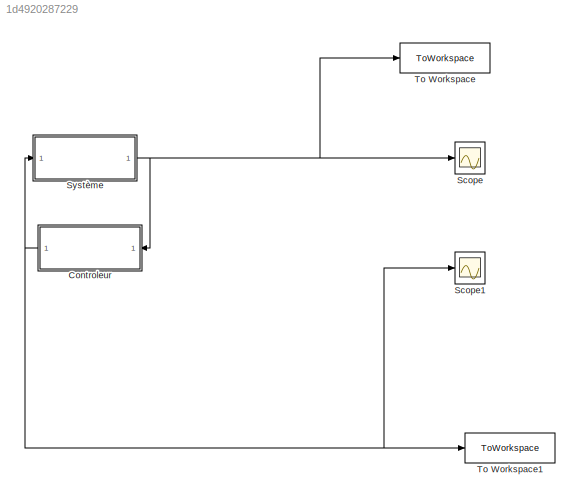
MODEL slx_1d4920287229
KIND model
CONFIG AbsTol = auto
CONFIG EnableMultiTasking = off
CONFIG FixedStep = auto
CONFIG MaxStep = auto
CONFIG MinStep = auto
CONFIG RelTol = 1e-3
CONFIG SampleTimeConstraint = Unconstrained
CONFIG SolverName = VariableStepAuto
CONFIG StartTime = 0.0
CONFIG StopTime = 10.0
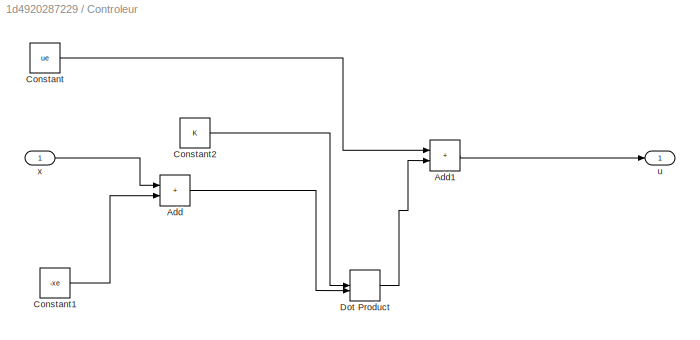
BLOCK [SubSystem] Controleur
  NameLocation = top
  Ports = [1, 1]
  RequestExecContextInheritance = off
BLOCK [Sum] Controleur/Add
  IconShape = rectangular
  Ports = [2, 1]
BLOCK [Sum] Controleur/Add1
  IconShape = rectangular
  Ports = [2, 1]
BLOCK [Constant] Controleur/Constant
  Value = ue
BLOCK [Constant] Controleur/Constant1
  Value = -xe
BLOCK [Constant] Controleur/Constant2
  Value = K
BLOCK [DotProduct] Controleur/Dot Product
  OutDataTypeStr = Inherit: Inherit via internal rule
BLOCK [Outport] Controleur/u
BLOCK [Inport] Controleur/x
BLOCK [Scope] Scope
  Floating = off
  NumInputPorts = 1
  Ports = [1]
  ScopeSpecificationString = Simulink.scopes.TimeScopeBlockCfg('CurrentConfiguration', extmgr.ConfigurationSet(extmgr.Configuration('Core','General UI',true),extmgr.Configuration('Core','Source UI',true),extmgr.Configuration('Sources','WiredSimulink',true),extmgr.Configuration('Visuals','Time Domain',true,'SerializedDisplays',{struct('MinYLimReal','-0.17819','MaxYLimReal','0.19433','YLabelReal','','MinYLimMag','0.00000','MaxY...<+1395ch>
BLOCK [Scope] Scope1
  Floating = off
  NumInputPorts = 1
  Ports = [1]
  ScopeSpecificationString = Simulink.scopes.TimeScopeBlockCfg('CurrentConfiguration', extmgr.ConfigurationSet(extmgr.Configuration('Core','General UI',true),extmgr.Configuration('Core','Source UI',true),extmgr.Configuration('Sources','WiredSimulink',true,'DataLoggingVariableName','ScopeData1'),extmgr.Configuration('Visuals','Time Domain',true,'SerializedDisplays',{struct('MinYLimReal','-2.41085','MaxYLimReal','5.50386','YLab...<+1423ch>
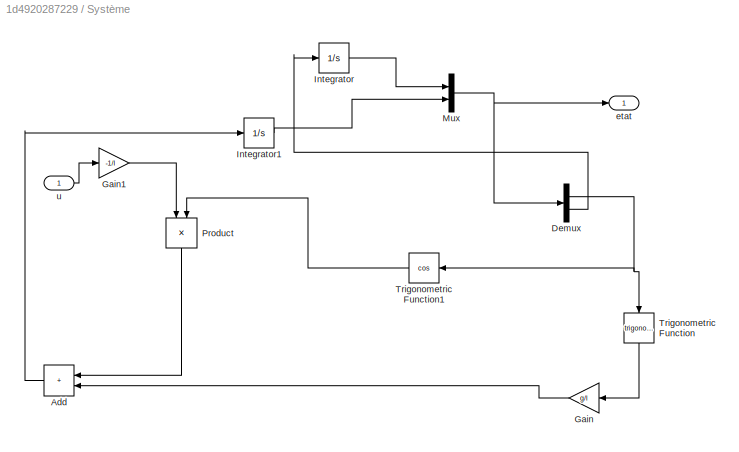
BLOCK [SubSystem] Système
  Ports = [1, 1]
  RequestExecContextInheritance = off
BLOCK [Sum] Système/Add
  IconShape = rectangular
  Ports = [2, 1]
BLOCK [Demux] Système/Demux
  Outputs = 2
  Ports = [1, 2]
BLOCK [Gain] Système/Gain
  Gain = g/l
BLOCK [Gain] Système/Gain1
  Gain = -1/l
BLOCK [Integrator] Système/Integrator
  InitialCondition = x0(1)
  Ports = [1, 1]
BLOCK [Integrator] Système/Integrator1
  InitialCondition = x0(2)
  Ports = [1, 1]
BLOCK [Mux] Système/Mux
  DisplayOption = bar
  Inputs = 2
  Ports = [2, 1]
BLOCK [Product] Système/Product
  NameLocation = left
  Ports = [2, 1]
BLOCK [Trigonometry] Système/Trigonometric Function
  NameLocation = left
  Ports = [1, 1]
BLOCK [Trigonometry] Système/Trigonometric Function1
  Operator = cos
  Ports = [1, 1]
BLOCK [Outport] Système/etat
BLOCK [Inport] Système/u
BLOCK [ToWorkspace] To Workspace
  FixptAsFi = on
  MaxDataPoints = inf
  Ports = [1]
  SampleTime = -1
  SaveFormat = Timeseries
  VariableName = X
BLOCK [ToWorkspace] To Workspace1
  FixptAsFi = on
  MaxDataPoints = inf
  Ports = [1]
  SampleTime = -1
  SaveFormat = Timeseries
  VariableName = U
LINE Controleur/Add1:1 -> Controleur/u:1
LINE Controleur/Add:1 -> Controleur/Dot Product:2
LINE Controleur/Constant1:1 -> Controleur/Add:2
LINE Controleur/Constant2:1 -> Controleur/Dot Product:1
LINE Controleur/Constant:1 -> Controleur/Add1:1
LINE Controleur/Dot Product:1 -> Controleur/Add1:2
LINE Controleur/x:1 -> Controleur/Add:1
NET Controleur:1 -> Scope1:1, Système:1, To Workspace1:1
LINE Système/Add:1 -> Système/Integrator1:1
NET Système/Demux:1 -> Système/Trigonometric Function1:1, Système/Trigonometric Function:1
LINE Système/Demux:2 -> Système/Integrator:1
LINE Système/Gain1:1 -> Système/Product:1
LINE Système/Gain:1 -> Système/Add:2
LINE Système/Integrator1:1 -> Système/Mux:2
LINE Système/Integrator:1 -> Système/Mux:1
NET Système/Mux:1 -> Système/Demux:1, Système/etat:1
LINE Système/Product:1 -> Système/Add:1
LINE Système/Trigonometric Function1:1 -> Système/Product:2
LINE Système/Trigonometric Function:1 -> Système/Gain:1
LINE Système/u:1 -> Système/Gain1:1
NET Système:1 -> Controleur:1, Scope:1, To Workspace:1
note: NET lines group one-source signal fan-out (src -> all destinations, sorted); 1:1 wires keep LINE
